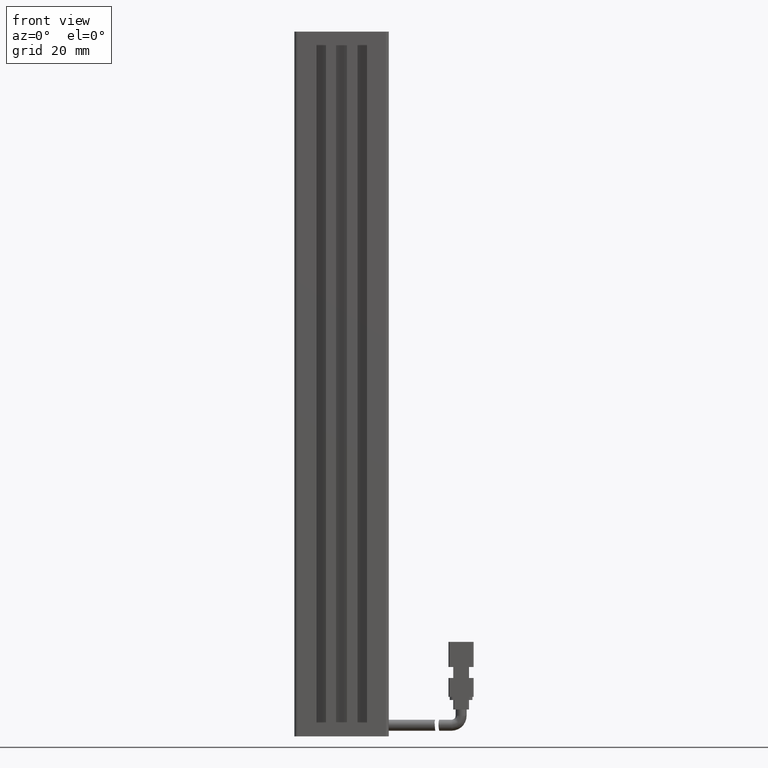
[diagram: clean part render]
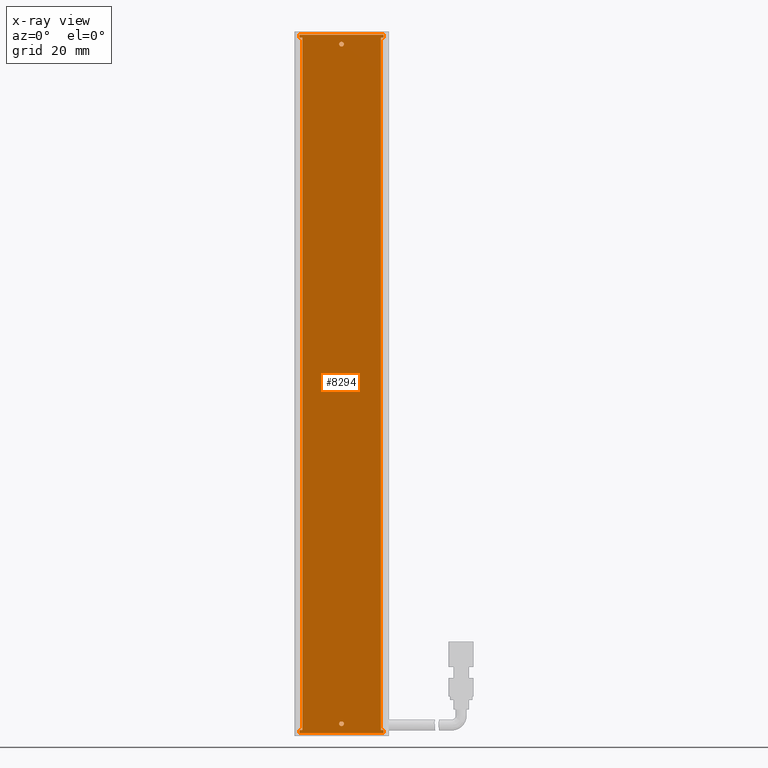
[diagram: x-ray — body ghosted, one internal face saturated and labeled with its STEP entity id]
A machine part, front view, then the same camera in x-ray: the body is ghosted and one INTERNAL B-rep face — a face not visible from any outside direction — is saturated and labeled: STEP entity #8294.
In plain terms, the highlighted planar face has unit normal (-0, 1, 0).
Its self-contained STEP definition (entity closure, byte-faithful):
#737 = CARTESIAN_POINT ( 'NONE',  ( 40.92537974683538200, 32.19594479660386100, -223.7499999999999700 ) ) ;
#893 = EDGE_CURVE ( 'NONE', #46126, #43175, #38451, .T. ) ;
#1796 = LINE ( 'NONE', #16205, #29804 ) ;
#2257 = VECTOR ( 'NONE', #35706, 1000.000000000000000 ) ;
#2268 = LINE ( 'NONE', #23644, #41588 ) ;
#4290 = EDGE_CURVE ( 'NONE', #12001, #17358, #6614, .T. ) ;
#4800 = DIRECTION ( 'NONE',  ( 0.0000000000000000000, 0.0000000000000000000, 1.000000000000000000 ) ) ;
#4804 = VERTEX_POINT ( 'NONE', #39367 ) ;
#4849 = ORIENTED_EDGE ( 'NONE', *, *, #26008, .F. ) ;
#4974 = DIRECTION ( 'NONE',  ( -0.0000000000000000000, -1.000000000000000000, -0.0000000000000000000 ) ) ;
#5137 = CARTESIAN_POINT ( 'NONE',  ( 40.92537974683538200, 32.19594479660386100, -222.9999999999999700 ) ) ;
#5919 = ORIENTED_EDGE ( 'NONE', *, *, #40646, .F. ) ;
#5971 = ORIENTED_EDGE ( 'NONE', *, *, #24628, .F. ) ;
#6285 = CARTESIAN_POINT ( 'NONE',  ( 54.32537974683540900, 32.19594479660386100, -225.0000000000000000 ) ) ;
#6614 = CIRCLE ( 'NONE', #48382, 0.7500000000000006700 ) ;
#6796 = LINE ( 'NONE', #35384, #25825 ) ;
#6942 = VERTEX_POINT ( 'NONE', #46286 ) ;
#7647 = CARTESIAN_POINT ( 'NONE',  ( 53.42537974683542500, 32.19594479660386800, -3.000000000000002700 ) ) ;
#7930 = VECTOR ( 'NONE', #33167, 1000.000000000000000 ) ;
#8128 = DIRECTION ( 'NONE',  ( -0.0000000000000000000, -0.0000000000000000000, -1.000000000000000000 ) ) ;
#8284 = ORIENTED_EDGE ( 'NONE', *, *, #28360, .F. ) ;
#8294 = ADVANCED_FACE ( 'NONE', ( #14222, #34513, #23113 ), #30562, .F. ) ;
#8583 = DIRECTION ( 'NONE',  ( 1.000000000000000000, -0.0000000000000000000, 0.0000000000000000000 ) ) ;
#8967 = CARTESIAN_POINT ( 'NONE',  ( 28.42537974683542100, 32.19594479660386800, -3.000000000000002700 ) ) ;
#9922 = CARTESIAN_POINT ( 'NONE',  ( 40.92537974683541800, 32.19594479660386100, -6.999999999999979600 ) ) ;
#10836 = CARTESIAN_POINT ( 'NONE',  ( 54.32537974683541600, 32.19594479660386100, -3.999999999999977400 ) ) ;
#11163 = VECTOR ( 'NONE', #42859, 1000.000000000000000 ) ;
#11867 = VERTEX_POINT ( 'NONE', #6285 ) ;
#12001 = VERTEX_POINT ( 'NONE', #737 ) ;
#12090 = AXIS2_PLACEMENT_3D ( 'NONE', #18709, #18668, #18657 ) ;
#12355 = LINE ( 'NONE', #46514, #11163 ) ;
#12404 = ORIENTED_EDGE ( 'NONE', *, *, #39536, .F. ) ;
#12463 = EDGE_LOOP ( 'NONE', ( #8284, #30436 ) ) ;
#13158 = CARTESIAN_POINT ( 'NONE',  ( 27.52537974683541600, 32.19594479660386100, -3.999999999999976000 ) ) ;
#13273 = CARTESIAN_POINT ( 'NONE',  ( 53.42537974683542500, 32.19594479660386100, -225.0000000000000000 ) ) ;
#13470 = CARTESIAN_POINT ( 'NONE',  ( 40.92537974683541800, 32.19594479660386100, -7.749999999999978700 ) ) ;
#13490 = VERTEX_POINT ( 'NONE', #41342 ) ;
#13584 = ORIENTED_EDGE ( 'NONE', *, *, #24563, .F. ) ;
#13743 = DIRECTION ( 'NONE',  ( 0.0000000000000000000, 0.0000000000000000000, 1.000000000000000000 ) ) ;
#13759 = EDGE_CURVE ( 'NONE', #43175, #15855, #6796, .T. ) ;
#14188 = DIRECTION ( 'NONE',  ( -5.551115123125781500E-017, -0.0000000000000000000, -1.000000000000000000 ) ) ;
#14222 = FACE_OUTER_BOUND ( 'NONE', #24366, .T. ) ;
#14317 = CARTESIAN_POINT ( 'NONE',  ( 27.52537974683538400, 32.19594479660386800, -5.000000000000004400 ) ) ;
#14379 = EDGE_CURVE ( 'NONE', #33475, #46438, #21435, .T. ) ;
#14647 = DIRECTION ( 'NONE',  ( 1.000000000000000000, 0.0000000000000000000, -5.551115123125781500E-017 ) ) ;
#14686 = VERTEX_POINT ( 'NONE', #13158 ) ;
#14836 = AXIS2_PLACEMENT_3D ( 'NONE', #19642, #46269, #23459 ) ;
#14917 = CARTESIAN_POINT ( 'NONE',  ( 28.42537974683542100, 32.19594479660386800, -225.0000000000000000 ) ) ;
#15855 = VERTEX_POINT ( 'NONE', #22687 ) ;
#15868 = VECTOR ( 'NONE', #14188, 1000.000000000000000 ) ;
#15897 = AXIS2_PLACEMENT_3D ( 'NONE', #30058, #30051, #30006 ) ;
#16069 = EDGE_CURVE ( 'NONE', #30210, #15855, #42783, .T. ) ;
#16205 = CARTESIAN_POINT ( 'NONE',  ( 25.92537974683541800, 32.19594479660386100, -5.000000000000004400 ) ) ;
#17358 = VERTEX_POINT ( 'NONE', #21184 ) ;
#17687 = LINE ( 'NONE', #44347, #46843 ) ;
#18261 = LINE ( 'NONE', #40645, #15868 ) ;
#18612 = ORIENTED_EDGE ( 'NONE', *, *, #33032, .T. ) ;
#18657 = DIRECTION ( 'NONE',  ( 0.0000000000000000000, 0.0000000000000000000, 1.000000000000000000 ) ) ;
#18668 = DIRECTION ( 'NONE',  ( -0.0000000000000000000, -1.000000000000000000, -0.0000000000000000000 ) ) ;
#18709 = CARTESIAN_POINT ( 'NONE',  ( 40.92537974683541800, 32.19594479660386100, -6.999999999999979600 ) ) ;
#18938 = ORIENTED_EDGE ( 'NONE', *, *, #16069, .F. ) ;
#19642 = CARTESIAN_POINT ( 'NONE',  ( 40.92537974683538200, 32.19594479660386100, -222.9999999999999700 ) ) ;
#19936 = VECTOR ( 'NONE', #45365, 1000.000000000000000 ) ;
#21114 = LINE ( 'NONE', #33894, #19936 ) ;
#21184 = CARTESIAN_POINT ( 'NONE',  ( 40.92537974683538200, 32.19594479660386100, -222.2499999999999700 ) ) ;
#21435 = CIRCLE ( 'NONE', #12090, 0.7499999999999997800 ) ;
#21555 = ORIENTED_EDGE ( 'NONE', *, *, #45653, .T. ) ;
#21986 = EDGE_CURVE ( 'NONE', #13490, #38166, #18261, .T. ) ;
#22687 = CARTESIAN_POINT ( 'NONE',  ( 27.52537974683538400, 32.19594479660386800, -225.0000000000000000 ) ) ;
#23113 = FACE_BOUND ( 'NONE', #12463, .T. ) ;
#23303 = ORIENTED_EDGE ( 'NONE', *, *, #45901, .F. ) ;
#23459 = DIRECTION ( 'NONE',  ( 0.0000000000000000000, 0.0000000000000000000, 1.000000000000000000 ) ) ;
#23644 = CARTESIAN_POINT ( 'NONE',  ( 40.92537974683542500, 32.19594479660386800, -225.0000000000000000 ) ) ;
#24366 = EDGE_LOOP ( 'NONE', ( #5919, #12404, #18612, #33944, #5971, #13584, #21555, #28932, #42364, #18938, #23303, #4849 ) ) ;
#24563 = EDGE_CURVE ( 'NONE', #40961, #14686, #37127, .T. ) ;
#24628 = EDGE_CURVE ( 'NONE', #14686, #13490, #41263, .T. ) ;
#25046 = VERTEX_POINT ( 'NONE', #13273 ) ;
#25825 = VECTOR ( 'NONE', #35852, 1000.000000000000000 ) ;
#26008 = EDGE_CURVE ( 'NONE', #11867, #6942, #21114, .T. ) ;
#26835 = CARTESIAN_POINT ( 'NONE',  ( 28.42537974683542100, 32.19594479660386100, -5.000000000000004400 ) ) ;
#26908 = EDGE_LOOP ( 'NONE', ( #35626, #44593 ) ) ;
#28278 = VECTOR ( 'NONE', #8128, 1000.000000000000000 ) ;
#28360 = EDGE_CURVE ( 'NONE', #17358, #12001, #44524, .T. ) ;
#28932 = ORIENTED_EDGE ( 'NONE', *, *, #893, .T. ) ;
#29476 = CARTESIAN_POINT ( 'NONE',  ( 27.52537974683539400, 32.19594479660386100, -3.999999999999976000 ) ) ;
#29804 = VECTOR ( 'NONE', #8583, 1000.000000000000000 ) ;
#30006 = DIRECTION ( 'NONE',  ( 5.551115123125781500E-017, 0.0000000000000000000, 1.000000000000000000 ) ) ;
#30051 = DIRECTION ( 'NONE',  ( -0.0000000000000000000, 1.000000000000000000, 0.0000000000000000000 ) ) ;
#30058 = CARTESIAN_POINT ( 'NONE',  ( 54.32537974683541600, 32.19594479660386100, -3.999999999999977400 ) ) ;
#30210 = VERTEX_POINT ( 'NONE', #37526 ) ;
#30436 = ORIENTED_EDGE ( 'NONE', *, *, #4290, .F. ) ;
#30562 = PLANE ( 'NONE',  #15897 ) ;
#30644 = CARTESIAN_POINT ( 'NONE',  ( 40.92537974683541800, 32.19594479660386100, -6.249999999999979600 ) ) ;
#31126 = VECTOR ( 'NONE', #14647, 1000.000000000000000 ) ;
#31852 = CARTESIAN_POINT ( 'NONE',  ( 27.52537974683539400, 32.19594479660386100, -3.999999999999976000 ) ) ;
#32283 = VECTOR ( 'NONE', #45734, 1000.000000000000000 ) ;
#32685 = EDGE_CURVE ( 'NONE', #46438, #33475, #35261, .T. ) ;
#33032 = EDGE_CURVE ( 'NONE', #4804, #38166, #1796, .T. ) ;
#33039 = DIRECTION ( 'NONE',  ( -1.000000000000000000, -0.0000000000000000000, 5.551115123125781500E-017 ) ) ;
#33167 = DIRECTION ( 'NONE',  ( 5.551115123125781500E-017, 0.0000000000000000000, 1.000000000000000000 ) ) ;
#33475 = VERTEX_POINT ( 'NONE', #30644 ) ;
#33894 = CARTESIAN_POINT ( 'NONE',  ( 54.32537974683541600, 32.19594479660386100, -3.999999999999977400 ) ) ;
#33944 = ORIENTED_EDGE ( 'NONE', *, *, #21986, .F. ) ;
#34513 = FACE_BOUND ( 'NONE', #26908, .T. ) ;
#35206 = DIRECTION ( 'NONE',  ( 1.000000000000000000, 0.0000000000000000000, 0.0000000000000000000 ) ) ;
#35261 = CIRCLE ( 'NONE', #45234, 0.7499999999999997800 ) ;
#35384 = CARTESIAN_POINT ( 'NONE',  ( 40.92537974683542500, 32.19594479660386800, -225.0000000000000000 ) ) ;
#35626 = ORIENTED_EDGE ( 'NONE', *, *, #14379, .F. ) ;
#35706 = DIRECTION ( 'NONE',  ( 5.551115123125781500E-017, 0.0000000000000000000, 1.000000000000000000 ) ) ;
#35852 = DIRECTION ( 'NONE',  ( -1.000000000000000000, -0.0000000000000000000, 0.0000000000000000000 ) ) ;
#36564 = DIRECTION ( 'NONE',  ( -0.0000000000000000000, -1.000000000000000000, -0.0000000000000000000 ) ) ;
#37127 = LINE ( 'NONE', #29476, #7930 ) ;
#37526 = CARTESIAN_POINT ( 'NONE',  ( 27.52537974683538400, 32.19594479660386100, -225.9999999999999700 ) ) ;
#38166 = VERTEX_POINT ( 'NONE', #48627 ) ;
#38451 = LINE ( 'NONE', #8967, #28278 ) ;
#39367 = CARTESIAN_POINT ( 'NONE',  ( 53.42537974683542500, 32.19594479660386800, -5.000000000000004400 ) ) ;
#39536 = EDGE_CURVE ( 'NONE', #4804, #25046, #42398, .T. ) ;
#40645 = CARTESIAN_POINT ( 'NONE',  ( 54.32537974683541600, 32.19594479660386100, -3.999999999999977400 ) ) ;
#40646 = EDGE_CURVE ( 'NONE', #25046, #11867, #2268, .T. ) ;
#40961 = VERTEX_POINT ( 'NONE', #14317 ) ;
#41263 = LINE ( 'NONE', #10836, #31126 ) ;
#41342 = CARTESIAN_POINT ( 'NONE',  ( 54.32537974683541600, 32.19594479660386100, -3.999999999999977400 ) ) ;
#41588 = VECTOR ( 'NONE', #35206, 1000.000000000000000 ) ;
#42364 = ORIENTED_EDGE ( 'NONE', *, *, #13759, .T. ) ;
#42398 = LINE ( 'NONE', #7647, #32283 ) ;
#42783 = LINE ( 'NONE', #31852, #2257 ) ;
#42859 = DIRECTION ( 'NONE',  ( 1.000000000000000000, 0.0000000000000000000, -0.0000000000000000000 ) ) ;
#43175 = VERTEX_POINT ( 'NONE', #14917 ) ;
#44347 = CARTESIAN_POINT ( 'NONE',  ( 54.32537974683540900, 32.19594479660386100, -225.9999999999999700 ) ) ;
#44524 = CIRCLE ( 'NONE', #14836, 0.7500000000000006700 ) ;
#44593 = ORIENTED_EDGE ( 'NONE', *, *, #32685, .F. ) ;
#45234 = AXIS2_PLACEMENT_3D ( 'NONE', #9922, #36564, #13743 ) ;
#45365 = DIRECTION ( 'NONE',  ( -5.551115123125781500E-017, -0.0000000000000000000, -1.000000000000000000 ) ) ;
#45653 = EDGE_CURVE ( 'NONE', #40961, #46126, #12355, .T. ) ;
#45734 = DIRECTION ( 'NONE',  ( -0.0000000000000000000, -0.0000000000000000000, -1.000000000000000000 ) ) ;
#45901 = EDGE_CURVE ( 'NONE', #6942, #30210, #17687, .T. ) ;
#46126 = VERTEX_POINT ( 'NONE', #26835 ) ;
#46269 = DIRECTION ( 'NONE',  ( -0.0000000000000000000, -1.000000000000000000, -0.0000000000000000000 ) ) ;
#46286 = CARTESIAN_POINT ( 'NONE',  ( 54.32537974683539500, 32.19594479660386100, -225.9999999999999700 ) ) ;
#46438 = VERTEX_POINT ( 'NONE', #13470 ) ;
#46514 = CARTESIAN_POINT ( 'NONE',  ( 40.92537974683542500, 32.19594479660386800, -5.000000000000004400 ) ) ;
#46843 = VECTOR ( 'NONE', #33039, 1000.000000000000000 ) ;
#48382 = AXIS2_PLACEMENT_3D ( 'NONE', #5137, #4974, #4800 ) ;
#48627 = CARTESIAN_POINT ( 'NONE',  ( 54.32537974683541600, 32.19594479660386100, -5.000000000000004400 ) ) ;